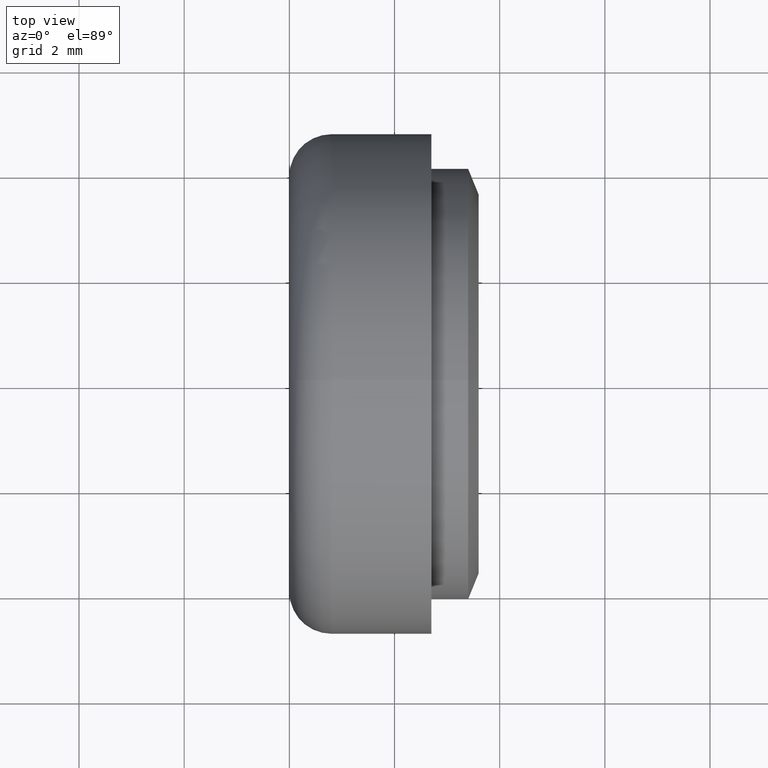
[diagram: clean part render]
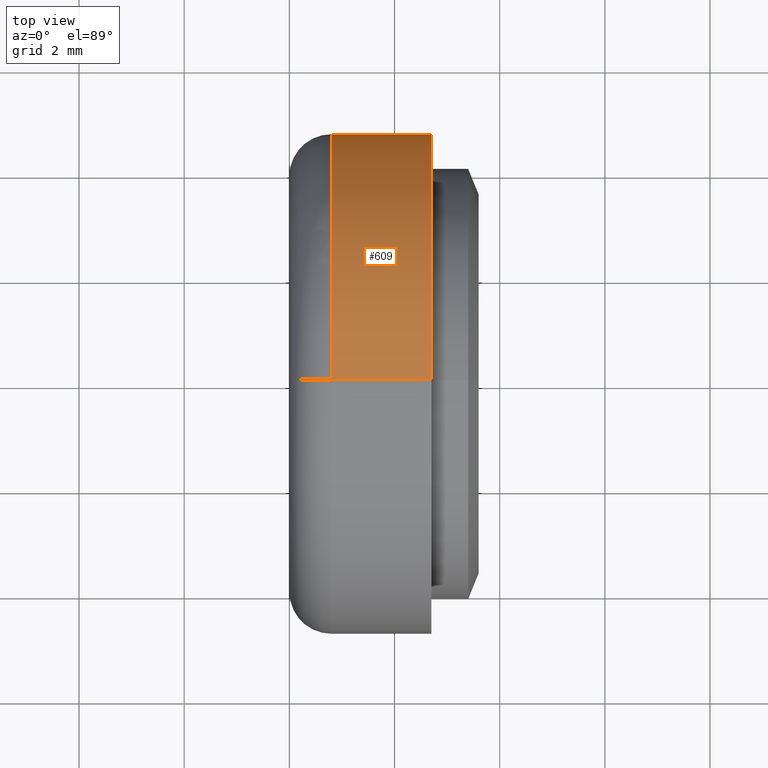
[diagram: same view with one face highlighted and labeled with its STEP entity id]
A machine part, top view. The second image highlights one B-rep face of the part: STEP entity #609.
In plain terms, the highlighted cylindrical surface (partial cylindrical patch) has radius 4.75 mm, axis along (-1, -0, -0).
Its self-contained STEP definition (entity closure, byte-faithful):
#30 = CARTESIAN_POINT ( 'NONE',  ( 2.700000000000000200, 5.817072295949926400E-016, -4.750000000000000000 ) ) ;
#31 = CARTESIAN_POINT ( 'NONE',  ( 0.7999999999999999300, 0.0000000000000000000, 0.0000000000000000000 ) ) ;
#35 = CARTESIAN_POINT ( 'NONE',  ( 2.700000000000000200, 0.0000000000000000000, 4.750000000000000000 ) ) ;
#73 = CIRCLE ( 'NONE', #727, 4.750000000000000000 ) ;
#79 = EDGE_CURVE ( 'NONE', #577, #216, #73, .T. ) ;
#82 = DIRECTION ( 'NONE',  ( -1.000000000000000000, -0.0000000000000000000, -0.0000000000000000000 ) ) ;
#93 = DIRECTION ( 'NONE',  ( 0.0000000000000000000, 0.0000000000000000000, -1.000000000000000000 ) ) ;
#102 = CARTESIAN_POINT ( 'NONE',  ( 2.700000000000000200, 0.0000000000000000000, 0.0000000000000000000 ) ) ;
#108 = FACE_OUTER_BOUND ( 'NONE', #239, .T. ) ;
#131 = CIRCLE ( 'NONE', #231, 4.750000000000000000 ) ;
#216 = VERTEX_POINT ( 'NONE', #728 ) ;
#219 = DIRECTION ( 'NONE',  ( 1.000000000000000000, 0.0000000000000000000, 0.0000000000000000000 ) ) ;
#231 = AXIS2_PLACEMENT_3D ( 'NONE', #31, #423, #93 ) ;
#239 = EDGE_LOOP ( 'NONE', ( #362, #255, #686, #261 ) ) ;
#255 = ORIENTED_EDGE ( 'NONE', *, *, #693, .T. ) ;
#261 = ORIENTED_EDGE ( 'NONE', *, *, #610, .F. ) ;
#292 = CARTESIAN_POINT ( 'NONE',  ( 0.7999999999999999300, 0.0000000000000000000, 4.750000000000000000 ) ) ;
#320 = VERTEX_POINT ( 'NONE', #407 ) ;
#362 = ORIENTED_EDGE ( 'NONE', *, *, #79, .F. ) ;
#377 = AXIS2_PLACEMENT_3D ( 'NONE', #476, #532, #711 ) ;
#388 = CYLINDRICAL_SURFACE ( 'NONE', #377, 4.750000000000000000 ) ;
#407 = CARTESIAN_POINT ( 'NONE',  ( 0.7999999999999999300, 5.817072295949926400E-016, -4.750000000000000000 ) ) ;
#410 = CARTESIAN_POINT ( 'NONE',  ( 2.700000000000000200, 5.817072295949926400E-016, -4.750000000000000000 ) ) ;
#423 = DIRECTION ( 'NONE',  ( 1.000000000000000000, 0.0000000000000000000, 0.0000000000000000000 ) ) ;
#427 = DIRECTION ( 'NONE',  ( -1.000000000000000000, -0.0000000000000000000, -0.0000000000000000000 ) ) ;
#447 = VECTOR ( 'NONE', #82, 1000.000000000000000 ) ;
#468 = VERTEX_POINT ( 'NONE', #292 ) ;
#476 = CARTESIAN_POINT ( 'NONE',  ( 2.700000000000000200, 0.0000000000000000000, 0.0000000000000000000 ) ) ;
#532 = DIRECTION ( 'NONE',  ( -1.000000000000000000, -0.0000000000000000000, -0.0000000000000000000 ) ) ;
#537 = DIRECTION ( 'NONE',  ( 0.0000000000000000000, 0.0000000000000000000, -1.000000000000000000 ) ) ;
#552 = LINE ( 'NONE', #35, #691 ) ;
#570 = EDGE_CURVE ( 'NONE', #320, #468, #131, .T. ) ;
#577 = VERTEX_POINT ( 'NONE', #30 ) ;
#581 = LINE ( 'NONE', #410, #447 ) ;
#609 = ADVANCED_FACE ( 'NONE', ( #108 ), #388, .T. ) ;
#610 = EDGE_CURVE ( 'NONE', #216, #468, #552, .T. ) ;
#686 = ORIENTED_EDGE ( 'NONE', *, *, #570, .T. ) ;
#691 = VECTOR ( 'NONE', #427, 1000.000000000000000 ) ;
#693 = EDGE_CURVE ( 'NONE', #577, #320, #581, .T. ) ;
#711 = DIRECTION ( 'NONE',  ( 0.0000000000000000000, 0.0000000000000000000, 1.000000000000000000 ) ) ;
#727 = AXIS2_PLACEMENT_3D ( 'NONE', #102, #219, #537 ) ;
#728 = CARTESIAN_POINT ( 'NONE',  ( 2.700000000000000200, 0.0000000000000000000, 4.750000000000000000 ) ) ;